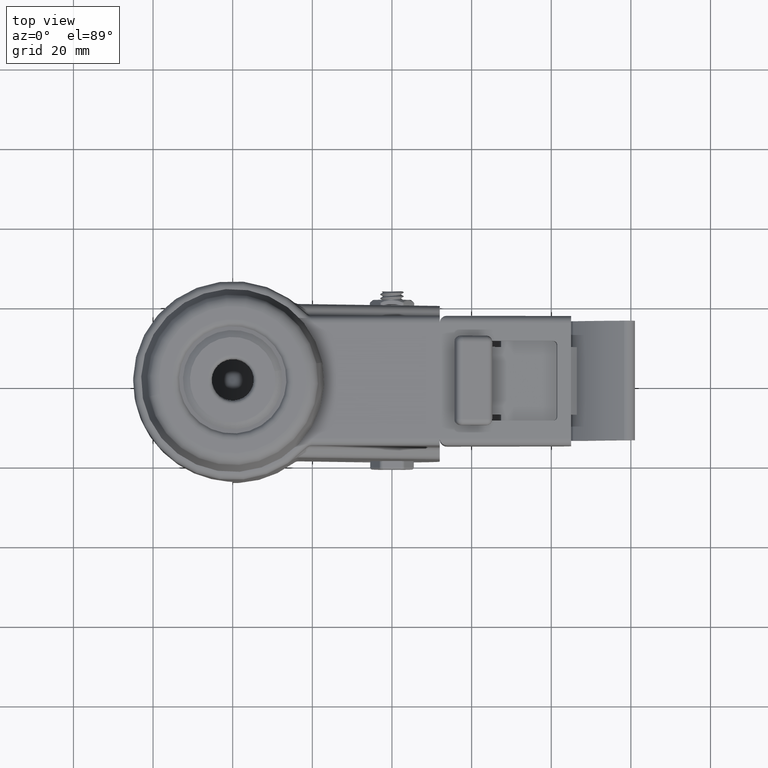
[diagram: clean part render]
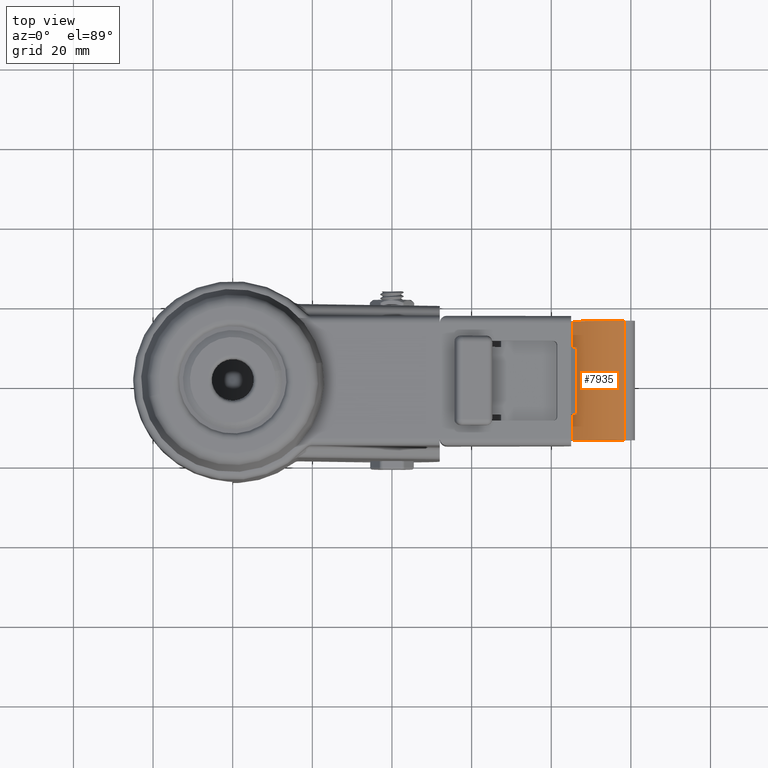
[diagram: same view with one face highlighted and labeled with its STEP entity id]
A machine part, top view. The second image highlights one B-rep face of the part: STEP entity #7935.
In plain terms, the highlighted cylindrical surface (partial cylindrical patch) has radius 30.1953 mm, axis along (0, -1, 0).
Its self-contained STEP definition (entity closure, byte-faithful):
#669=CYLINDRICAL_SURFACE('',#8744,30.1953250418728);
#1035=FACE_OUTER_BOUND('',#1531,.T.);
#1531=EDGE_LOOP('',(#6540,#6541,#6542,#6543,#6544,#6545,#6546,#6547));
#2086=LINE('',#14371,#2656);
#2088=LINE('',#14379,#2658);
#2091=LINE('',#14391,#2661);
#2144=LINE('',#14553,#2714);
#2656=VECTOR('',#10307,1000.);
#2658=VECTOR('',#10313,1000.);
#2661=VECTOR('',#10324,1000.);
#2714=VECTOR('',#10487,1000.);
#3107=CIRCLE('',#8724,30.1953250418728);
#3108=CIRCLE('',#8730,30.1953250418728);
#3109=CIRCLE('',#8745,30.1953250418728);
#3110=CIRCLE('',#8746,30.1953250418728);
#3674=VERTEX_POINT('',#14368);
#3675=VERTEX_POINT('',#14370);
#3678=VERTEX_POINT('',#14376);
#3679=VERTEX_POINT('',#14378);
#3681=VERTEX_POINT('',#14384);
#3684=VERTEX_POINT('',#14389);
#3733=VERTEX_POINT('',#14539);
#3738=VERTEX_POINT('',#14551);
#4617=EDGE_CURVE('',#3674,#3675,#2086,.T.);
#4621=EDGE_CURVE('',#3678,#3679,#2088,.T.);
#4627=EDGE_CURVE('',#3684,#3681,#2091,.T.);
#4705=EDGE_CURVE('',#3678,#3733,#3107,.T.);
#4711=EDGE_CURVE('',#3733,#3738,#2144,.T.);
#4722=EDGE_CURVE('',#3738,#3675,#3108,.T.);
#4729=EDGE_CURVE('',#3674,#3681,#3109,.T.);
#4730=EDGE_CURVE('',#3684,#3679,#3110,.T.);
#6540=ORIENTED_EDGE('',*,*,#4705,.T.);
#6541=ORIENTED_EDGE('',*,*,#4711,.T.);
#6542=ORIENTED_EDGE('',*,*,#4722,.T.);
#6543=ORIENTED_EDGE('',*,*,#4617,.F.);
#6544=ORIENTED_EDGE('',*,*,#4729,.T.);
#6545=ORIENTED_EDGE('',*,*,#4627,.F.);
#6546=ORIENTED_EDGE('',*,*,#4730,.T.);
#6547=ORIENTED_EDGE('',*,*,#4621,.F.);
#7935=ADVANCED_FACE('',(#1035),#669,.T.);
#8724=AXIS2_PLACEMENT_3D('',#14541,#10478,#10479);
#8730=AXIS2_PLACEMENT_3D('',#14570,#10506,#10507);
#8744=AXIS2_PLACEMENT_3D('',#14592,#10540,#10541);
#8745=AXIS2_PLACEMENT_3D('',#14593,#10542,#10543);
#8746=AXIS2_PLACEMENT_3D('',#14594,#10544,#10545);
#10307=DIRECTION('',(0.,1.,0.));
#10313=DIRECTION('',(0.,1.,0.));
#10324=DIRECTION('',(0.,-1.,0.));
#10478=DIRECTION('center_axis',(0.,1.,0.));
#10479=DIRECTION('ref_axis',(-0.7626037929499,0.,0.6468658709334));
#10487=DIRECTION('',(0.,-1.,0.));
#10506=DIRECTION('center_axis',(0.,-1.,0.));
#10507=DIRECTION('ref_axis',(-0.7626037929499,0.,0.6468658709334));
#10540=DIRECTION('center_axis',(0.,-1.,0.));
#10541=DIRECTION('ref_axis',(-0.7626037929499,0.,0.6468658709334));
#10542=DIRECTION('center_axis',(0.,1.,0.));
#10543=DIRECTION('ref_axis',(-0.7626037929499,0.,0.6468658709334));
#10544=DIRECTION('center_axis',(0.,-1.,0.));
#10545=DIRECTION('ref_axis',(-0.7626037929499,0.,0.6468658709334));
#14368=CARTESIAN_POINT('',(85.4747924141002,-15.,-18.5136909700366));
#14370=CARTESIAN_POINT('',(85.4747924141002,-8.5,-18.5136909700367));
#14371=CARTESIAN_POINT('',(85.4747924141002,0.,-18.5136909700366));
#14376=CARTESIAN_POINT('',(85.4747924141002,8.5,-18.5136909700367));
#14378=CARTESIAN_POINT('',(85.4747924141002,15.,-18.5136909700366));
#14379=CARTESIAN_POINT('',(85.4747924141002,0.,-18.5136909700366));
#14384=CARTESIAN_POINT('',(98.3259973554995,-15.,-9.61699165291116));
#14389=CARTESIAN_POINT('',(98.3259973554995,15.,-9.61699165291116));
#14391=CARTESIAN_POINT('',(98.3259973554995,0.,-9.61699165291116));
#14539=CARTESIAN_POINT('',(86.4325800845425,8.5,-17.4376572650437));
#14541=CARTESIAN_POINT('Origin',(108.501861820387,8.5,-38.0460162013648));
#14551=CARTESIAN_POINT('',(86.4325800845425,-8.5,-17.4376572650437));
#14553=CARTESIAN_POINT('',(86.4325800845425,-4.25,-17.4376572650437));
#14570=CARTESIAN_POINT('Origin',(108.501861820387,-8.5,-38.0460162013648));
#14592=CARTESIAN_POINT('Origin',(108.501861820387,0.,-38.0460162013648));
#14593=CARTESIAN_POINT('Origin',(108.501861820387,-15.,-38.0460162013648));
#14594=CARTESIAN_POINT('Origin',(108.501861820387,15.,-38.0460162013648));